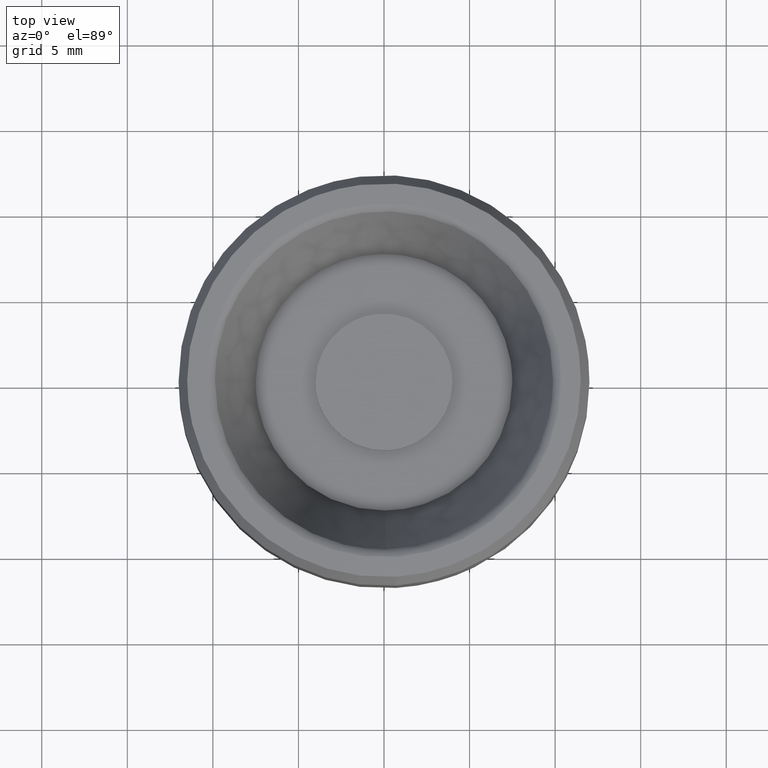
[diagram: clean part render]
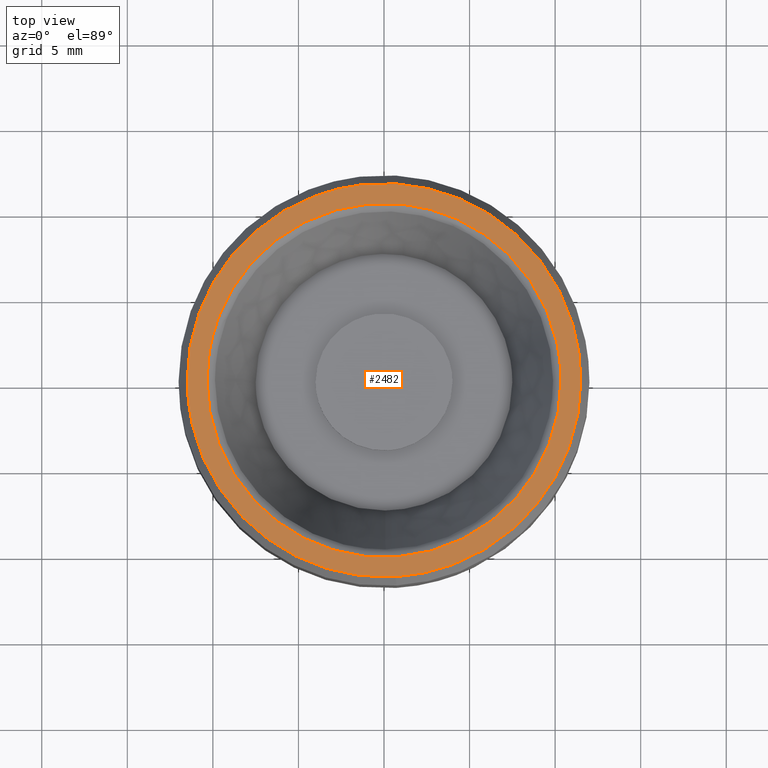
[diagram: same view with one face highlighted and labeled with its STEP entity id]
A machine part, top view. The second image highlights one B-rep face of the part: STEP entity #2482.
In plain terms, the highlighted face is a freeform B-spline surface patch.
Its self-contained STEP definition (entity closure, byte-faithful):
#2047=CARTESIAN_POINT('',(-1.357393698567088,11.419609553181770,15.999999999997391));
#2048=VERTEX_POINT('',#2047);
#2054=CARTESIAN_POINT('',(11.500000000000000,0.0,16.0));
#2055=VERTEX_POINT('',#2054);
#2056=CARTESIAN_POINT('',(-1.357393698567089,11.419609553181765,15.999999999997396));
#2057=CARTESIAN_POINT('',(-0.681077376011328,11.500000000000002,15.999999999999996));
#2058=CARTESIAN_POINT('',(0.0,11.500000000000000,16.0));
#2059=CARTESIAN_POINT('',(11.500000000000000,11.500000000000000,15.999999999999998));
#2060=CARTESIAN_POINT('',(11.500000000000000,0.0,16.0));
#2068=(BOUNDED_CURVE()B_SPLINE_CURVE(2,(#2056,#2057,#2058,#2059,#2060),.UNSPECIFIED.,.F.,.U.)B_SPLINE_CURVE_WITH_KNOTS((3,2,3),(0.229562473515224,0.250000000000000,0.500000000000000),.UNSPECIFIED.)CURVE()GEOMETRIC_REPRESENTATION_ITEM()RATIONAL_B_SPLINE_CURVE((0.956026754187061,0.976055948333155,1.0,0.707106781186548,1.0))REPRESENTATION_ITEM(''));
#2069=EDGE_CURVE('',#2048,#2055,#2068,.T.);
#2071=CARTESIAN_POINT('',(0.702058204661910,-11.478550181851800,15.999999999997989));
#2072=VERTEX_POINT('',#2071);
#2073=CARTESIAN_POINT('',(11.500000000000000,0.0,16.0));
#2074=CARTESIAN_POINT('',(11.499999999999998,-10.818119769394773,16.000000000000007));
#2075=CARTESIAN_POINT('',(0.702058204661910,-11.478550181851796,15.999999999997994));
#2083=(BOUNDED_CURVE()B_SPLINE_CURVE(2,(#2073,#2074,#2075),.UNSPECIFIED.,.F.,.U.)B_SPLINE_CURVE_WITH_KNOTS((3,3),(0.500000000000000,0.739332962241638),.UNSPECIFIED.)CURVE()GEOMETRIC_REPRESENTATION_ITEM()RATIONAL_B_SPLINE_CURVE((1.0,0.719603993283552,0.976072041672495))REPRESENTATION_ITEM(''));
#2084=EDGE_CURVE('',#2055,#2072,#2083,.T.);
#2117=CARTESIAN_POINT('',(-11.500000000000000,0.0,16.0));
#2118=VERTEX_POINT('',#2117);
#2119=CARTESIAN_POINT('',(0.702058204661910,-11.478550181851803,15.999999999997987));
#2120=CARTESIAN_POINT('',(0.351356777944796,-11.500000000000004,15.999999999999996));
#2121=CARTESIAN_POINT('',(0.0,-11.500000000000000,16.0));
#2122=CARTESIAN_POINT('',(-11.500000000000000,-11.500000000000000,15.999999999999998));
#2123=CARTESIAN_POINT('',(-11.500000000000000,0.0,16.0));
#2131=(BOUNDED_CURVE()B_SPLINE_CURVE(2,(#2119,#2120,#2121,#2122,#2123),.UNSPECIFIED.,.F.,.U.)B_SPLINE_CURVE_WITH_KNOTS((3,2,3),(0.739332962241638,0.750000000000000,1.0),.UNSPECIFIED.)CURVE()GEOMETRIC_REPRESENTATION_ITEM()RATIONAL_B_SPLINE_CURVE((0.976072041672493,0.987502787902995,1.0,0.707106781186548,1.0))REPRESENTATION_ITEM(''));
#2132=EDGE_CURVE('',#2072,#2118,#2131,.T.);
#2134=CARTESIAN_POINT('',(-11.500000000000000,0.0,16.0));
#2135=CARTESIAN_POINT('',(-11.499999999999998,10.214007048415123,16.000000000000004));
#2136=CARTESIAN_POINT('',(-1.357393698567089,11.419609553181765,15.999999999997396));
#2144=(BOUNDED_CURVE()B_SPLINE_CURVE(2,(#2134,#2135,#2136),.UNSPECIFIED.,.F.,.U.)B_SPLINE_CURVE_WITH_KNOTS((3,3),(0.0,0.229562473515224),.UNSPECIFIED.)CURVE()GEOMETRIC_REPRESENTATION_ITEM()RATIONAL_B_SPLINE_CURVE((1.0,0.731050832853393,0.956026754187061))REPRESENTATION_ITEM(''));
#2145=EDGE_CURVE('',#2118,#2048,#2144,.T.);
#2185=CARTESIAN_POINT('',(-9.664137561566529,3.686510465388390,16.0));
#2186=VERTEX_POINT('',#2185);
#2200=CARTESIAN_POINT('',(-10.343399549122459,0.0,16.0));
#2201=VERTEX_POINT('',#2200);
#2202=CARTESIAN_POINT('',(-10.343399549122459,0.0,16.0));
#2203=CARTESIAN_POINT('',(-10.343399549122461,1.905834310137202,16.000000000000007));
#2204=CARTESIAN_POINT('',(-9.664137561566529,3.686510465388390,15.999999999999996));
#2212=(BOUNDED_CURVE()B_SPLINE_CURVE(2,(#2202,#2203,#2204),.UNSPECIFIED.,.F.,.U.)B_SPLINE_CURVE_WITH_KNOTS((3,3),(0.0,0.060525011914657),.UNSPECIFIED.)CURVE()GEOMETRIC_REPRESENTATION_ITEM()RATIONAL_B_SPLINE_CURVE((1.0,0.929090537766374,0.892515443905165))REPRESENTATION_ITEM(''));
#2213=EDGE_CURVE('',#2201,#2186,#2212,.T.);
#2215=CARTESIAN_POINT('',(10.343399549122459,0.0,16.0));
#2216=VERTEX_POINT('',#2215);
#2217=CARTESIAN_POINT('',(10.343399549122459,0.0,16.0));
#2218=CARTESIAN_POINT('',(10.343399549122459,-10.343399549122459,15.999999999999998));
#2219=CARTESIAN_POINT('',(0.0,-10.343399549122459,16.0));
#2220=CARTESIAN_POINT('',(-10.343399549122459,-10.343399549122459,15.999999999999998));
#2221=CARTESIAN_POINT('',(-10.343399549122459,0.0,16.0));
#2229=(BOUNDED_CURVE()B_SPLINE_CURVE(2,(#2217,#2218,#2219,#2220,#2221),.UNSPECIFIED.,.F.,.U.)B_SPLINE_CURVE_WITH_KNOTS((3,2,3),(0.500000000000000,0.750000000000000,1.0),.UNSPECIFIED.)CURVE()GEOMETRIC_REPRESENTATION_ITEM()RATIONAL_B_SPLINE_CURVE((1.0,0.707106781186548,1.0,0.707106781186548,1.0))REPRESENTATION_ITEM(''));
#2230=EDGE_CURVE('',#2216,#2201,#2229,.T.);
#2232=CARTESIAN_POINT('',(4.233190528481268,9.437479122220534,16.0));
#2233=VERTEX_POINT('',#2232);
#2234=CARTESIAN_POINT('',(4.233190528481267,9.437479122220534,16.000000000000007));
#2235=CARTESIAN_POINT('',(10.343399549122459,6.696738865395710,16.000000000000007));
#2236=CARTESIAN_POINT('',(10.343399549122459,0.0,16.0));
#2244=(BOUNDED_CURVE()B_SPLINE_CURVE(2,(#2234,#2235,#2236),.UNSPECIFIED.,.F.,.U.)B_SPLINE_CURVE_WITH_KNOTS((3,3),(0.319501085436821,0.500000000000000),.UNSPECIFIED.)CURVE()GEOMETRIC_REPRESENTATION_ITEM()RATIONAL_B_SPLINE_CURVE((0.882422160154837,0.788532367685025,1.0))REPRESENTATION_ITEM(''));
#2245=EDGE_CURVE('',#2233,#2216,#2244,.T.);
#2288=CARTESIAN_POINT('',(-9.664137561566529,3.686510465388390,15.999999999999996));
#2289=CARTESIAN_POINT('',(-7.124780985599226,10.343399549122461,15.999999999999995));
#2290=CARTESIAN_POINT('',(0.0,10.343399549122459,16.0));
#2291=CARTESIAN_POINT('',(2.213530638913440,10.343399549122459,16.000000000000004));
#2292=CARTESIAN_POINT('',(4.233190528481267,9.437479122220534,16.000000000000007));
#2300=(BOUNDED_CURVE()B_SPLINE_CURVE(2,(#2288,#2289,#2290,#2291,#2292),.UNSPECIFIED.,.F.,.U.)B_SPLINE_CURVE_WITH_KNOTS((3,2,3),(0.060525011914657,0.250000000000000,0.319501085436821),.UNSPECIFIED.)CURVE()GEOMETRIC_REPRESENTATION_ITEM()RATIONAL_B_SPLINE_CURVE((0.892515443905165,0.778016243420173,1.0,0.918574413501523,0.882422160154837))REPRESENTATION_ITEM(''));
#2301=EDGE_CURVE('',#2186,#2233,#2300,.T.);
#2465=CARTESIAN_POINT('',(12.648849955421539,-12.648570271550859,16.0));
#2466=CARTESIAN_POINT('',(-12.648850572329611,-12.648570271550859,16.0));
#2467=CARTESIAN_POINT('',(12.648849955421539,12.648640804707259,16.0));
#2468=CARTESIAN_POINT('',(-12.648850572329611,12.648640804707259,16.0));
#2469=B_SPLINE_SURFACE_WITH_KNOTS('',1,1,((#2465,#2467),(#2466,#2468)),.UNSPECIFIED.,.F.,.F.,.U.,(2,2),(2,2),(0.0,25.297700527751150),(0.0,25.297211076258119),.UNSPECIFIED.);
#2470=ORIENTED_EDGE('',*,*,#2132,.F.);
#2471=ORIENTED_EDGE('',*,*,#2084,.F.);
#2472=ORIENTED_EDGE('',*,*,#2069,.F.);
#2473=ORIENTED_EDGE('',*,*,#2145,.F.);
#2474=EDGE_LOOP('',(#2470,#2471,#2472,#2473));
#2475=FACE_OUTER_BOUND('',#2474,.T.);
#2476=ORIENTED_EDGE('',*,*,#2230,.T.);
#2477=ORIENTED_EDGE('',*,*,#2213,.T.);
#2478=ORIENTED_EDGE('',*,*,#2301,.T.);
#2479=ORIENTED_EDGE('',*,*,#2245,.T.);
#2480=EDGE_LOOP('',(#2476,#2477,#2478,#2479));
#2481=FACE_BOUND('',#2480,.T.);
#2482=ADVANCED_FACE('',(#2475,#2481),#2469,.F.);